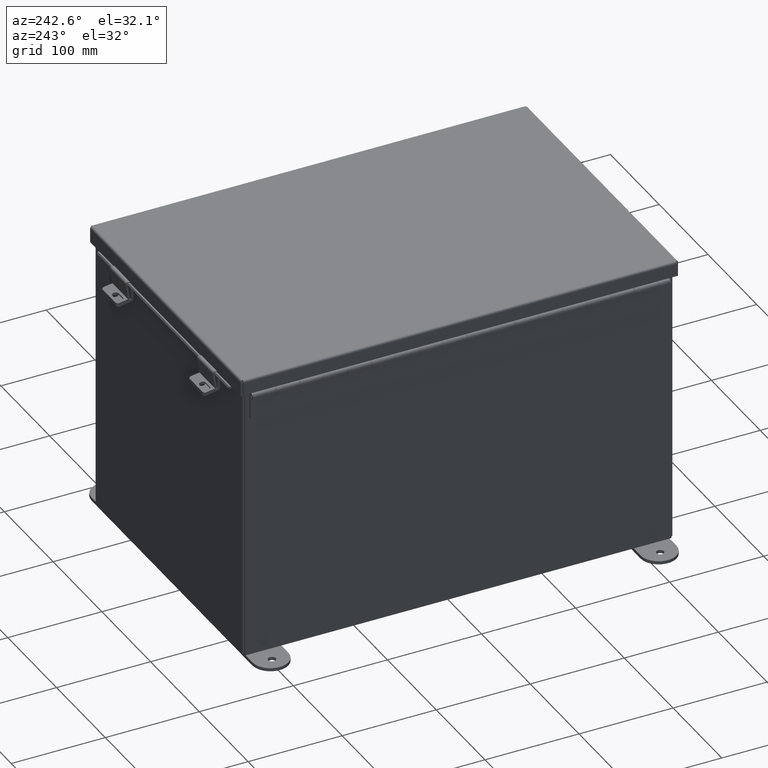
[diagram: clean part render]
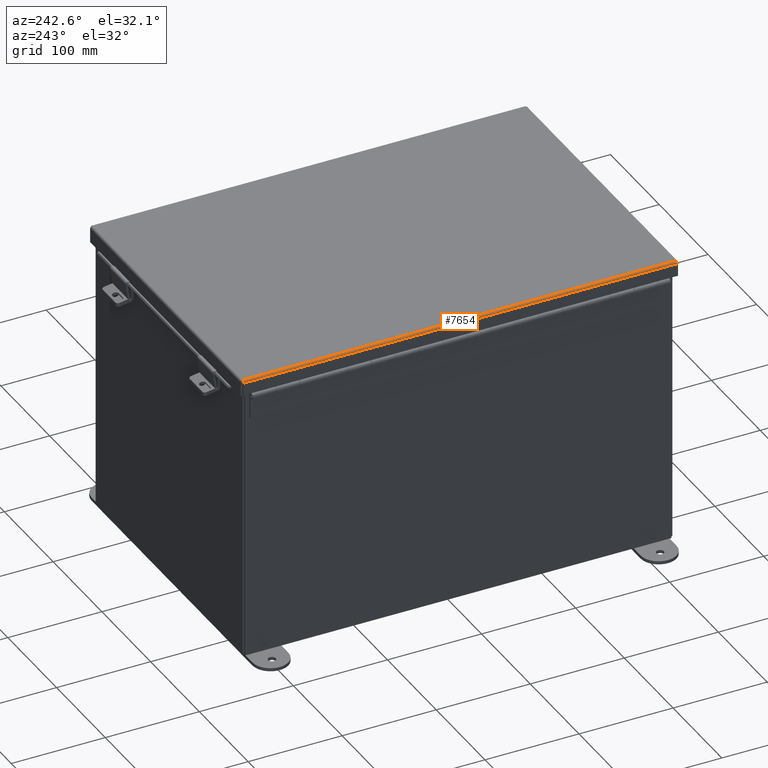
[diagram: same view with one face highlighted and labeled with its STEP entity id]
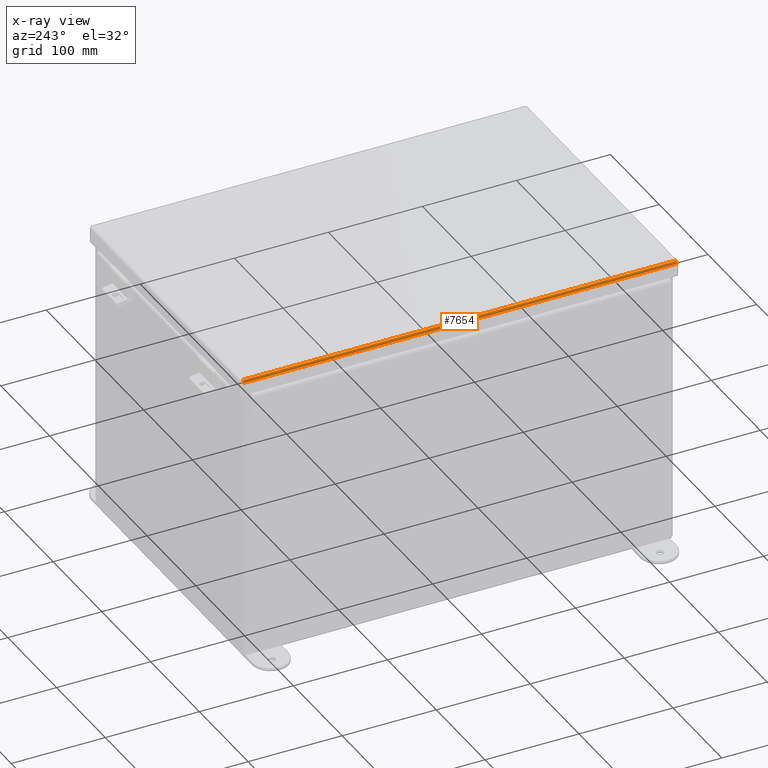
[diagram: x-ray of the same camera — body ghosted, the highlighted face saturated]
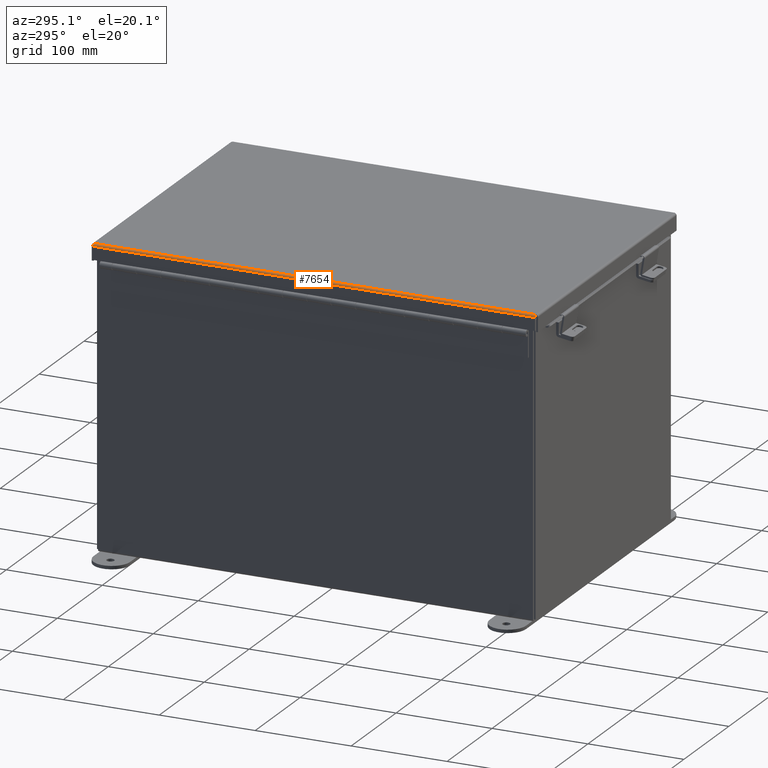
[diagram: same view with one face highlighted and labeled with its STEP entity id]
A machine part, auxiliary view. The second image highlights one B-rep face of the part: STEP entity #7654.
The next image is the same camera in x-ray: the body ghosted, the highlighted face saturated — about 0% of this face is hidden behind the body in this view.
A second angle (auxiliary view) of the same face is appended — the face is thin or edge-on in the first view.
In plain terms, the highlighted cylindrical surface (edge-blend (fillet) strip) has radius 2.2276 mm, axis along (0, 1, 0).
Its self-contained STEP definition (entity closure, byte-faithful):
#450 = CARTESIAN_POINT ( 'NONE',  ( 6.156250000000000000, -9.074478932188156900, 0.01300000000000010700 ) ) ;
#1283 = B_SPLINE_CURVE_WITH_KNOTS ( 'NONE', 3,
 ( #17846, #8669, #6507, #18585, #16425, #13266, #11812, #7691, #8114, #6486 ),
 .UNSPECIFIED., .F., .F.,
 ( 4, 2, 2, 2, 4 ),
 ( 0.0000000000000000000, 0.2500000000000000000, 0.5000000000000000000, 0.7500000000000000000, 1.000000000000000000 ),
 .UNSPECIFIED. ) ;
#1349 = EDGE_CURVE ( 'NONE', #8849, #5608, #7788, .T. ) ;
#1716 = CARTESIAN_POINT ( 'NONE',  ( 6.068550000000011700, -9.068550000000021400, -0.07470000000000015500 ) ) ;
#1801 = ORIENTED_EDGE ( 'NONE', *, *, #13396, .F. ) ;
#2033 = ORIENTED_EDGE ( 'NONE', *, *, #1349, .F. ) ;
#2591 = VECTOR ( 'NONE', #9209, 39.37007874015748100 ) ;
#3101 = CARTESIAN_POINT ( 'NONE',  ( 6.156250000000000000, -9.156250000000021300, 0.01300000000000010700 ) ) ;
#3126 = CARTESIAN_POINT ( 'NONE',  ( 6.156250000000000000, -9.074478932188156900, 0.01300000000000010700 ) ) ;
#5434 = DIRECTION ( 'NONE',  ( -4.576273056739369400E-029, 1.000000000000000000, 3.328006943901143600E-030 ) ) ;
#5555 = CARTESIAN_POINT ( 'NONE',  ( 6.145181066258667900, -9.072502621458779600, -0.03116738457853012600 ) ) ;
#5560 = FACE_OUTER_BOUND ( 'NONE', #17374, .T. ) ;
#5608 = VERTEX_POINT ( 'NONE', #450 ) ;
#6486 = CARTESIAN_POINT ( 'NONE',  ( 6.068550000000011700, 9.068549999999977000, -0.07469999999999797600 ) ) ;
#6507 = CARTESIAN_POINT ( 'NONE',  ( 6.153967403743811500, 9.073490776823424800, -0.009955289458306117900 ) ) ;
#7069 = EDGE_CURVE ( 'NONE', #12781, #5608, #14725, .T. ) ;
#7654 = ADVANCED_FACE ( 'NONE', ( #5560 ), #8943, .T. ) ;
#7691 = CARTESIAN_POINT ( 'NONE',  ( 6.091505289458309500, 9.069538155364668300, -0.07241740374381115700 ) ) ;
#7788 = B_SPLINE_CURVE_WITH_KNOTS ( 'NONE', 3,
 ( #8013, #18265, #13856, #12756, #9000, #12295, #5555, #10495, #8198, #3126 ),
 .UNSPECIFIED., .F., .F.,
 ( 4, 2, 2, 2, 4 ),
 ( 0.0000000000000000000, 0.2500000000000000000, 0.5000000000000000000, 0.7500000000000000000, 1.000000000000000000 ),
 .UNSPECIFIED. ) ;
#8013 = CARTESIAN_POINT ( 'NONE',  ( 6.068550000000011700, -9.068550000000021400, -0.07470000000000015500 ) ) ;
#8114 = CARTESIAN_POINT ( 'NONE',  ( 6.080029903154993100, 9.069044077682322700, -0.07469999999999998900 ) ) ;
#8198 = CARTESIAN_POINT ( 'NONE',  ( 6.156250000000000000, -9.073984854505813000, 0.001520096845003723500 ) ) ;
#8669 = CARTESIAN_POINT ( 'NONE',  ( 6.156249999999999100, 9.073984854505766900, 0.001520096845010427200 ) ) ;
#8849 = VERTEX_POINT ( 'NONE', #1716 ) ;
#8943 = CYLINDRICAL_SURFACE ( 'NONE', #15124, 0.08770000000000026400 ) ;
#9000 = CARTESIAN_POINT ( 'NONE',  ( 6.122445747341799900, -9.071020388411742600, -0.05713078207832136100 ) ) ;
#9209 = DIRECTION ( 'NONE',  ( 4.550355251618405500E-029, -1.000000000000000000, -5.967176504932513700E-017 ) ) ;
#9729 = LINE ( 'NONE', #11471, #17139 ) ;
#10270 = VERTEX_POINT ( 'NONE', #12696 ) ;
#10494 = DIRECTION ( 'NONE',  ( 1.000000000000000000, 0.0000000000000000000, -3.966747639032868000E-015 ) ) ;
#10495 = CARTESIAN_POINT ( 'NONE',  ( 6.153967403743810600, -9.073490776823467400, -0.009955289458312021100 ) ) ;
#11471 = CARTESIAN_POINT ( 'NONE',  ( 6.068550000000011700, 9.074478932188112500, -0.07469999999999797600 ) ) ;
#11812 = CARTESIAN_POINT ( 'NONE',  ( 6.112717384578529000, 9.070526310729356100, -0.06363106625866787900 ) ) ;
#12295 = CARTESIAN_POINT ( 'NONE',  ( 6.138680782078318500, -9.072008543776434000, -0.04089574734180182600 ) ) ;
#12545 = DIRECTION ( 'NONE',  ( 4.576273056739368800E-029, -1.000000000000000000, -3.328006943901143600E-030 ) ) ;
#12696 = CARTESIAN_POINT ( 'NONE',  ( 6.068550000000011700, 9.068549999999977000, -0.07469999999999797600 ) ) ;
#12756 = CARTESIAN_POINT ( 'NONE',  ( 6.112717384578525400, -9.070526310729398700, -0.06363106625866901700 ) ) ;
#12781 = VERTEX_POINT ( 'NONE', #17913 ) ;
#13266 = CARTESIAN_POINT ( 'NONE',  ( 6.122445747341800800, 9.071020388411700000, -0.05713078207831954300 ) ) ;
#13396 = EDGE_CURVE ( 'NONE', #10270, #8849, #9729, .T. ) ;
#13450 = EDGE_CURVE ( 'NONE', #12781, #10270, #1283, .T. ) ;
#13856 = CARTESIAN_POINT ( 'NONE',  ( 6.091505289458309500, -9.069538155364712800, -0.07241740374381140700 ) ) ;
#14725 = LINE ( 'NONE', #3101, #2591 ) ;
#15124 = AXIS2_PLACEMENT_3D ( 'NONE', #16944, #5434, #10494 ) ;
#16266 = ORIENTED_EDGE ( 'NONE', *, *, #7069, .T. ) ;
#16425 = CARTESIAN_POINT ( 'NONE',  ( 6.138680782078321100, 9.072008543776391300, -0.04089574734179846100 ) ) ;
#16944 = CARTESIAN_POINT ( 'NONE',  ( 6.068550000000000100, 9.074478932188112500, 0.01300000000000010700 ) ) ;
#17139 = VECTOR ( 'NONE', #12545, 39.37007874015748100 ) ;
#17374 = EDGE_LOOP ( 'NONE', ( #1801, #18261, #16266, #2033 ) ) ;
#17846 = CARTESIAN_POINT ( 'NONE',  ( 6.156250000000000000, 9.074478932188112500, 0.01300000000000229300 ) ) ;
#17913 = CARTESIAN_POINT ( 'NONE',  ( 6.156250000000000000, 9.074478932188112500, 0.01300000000000229300 ) ) ;
#18261 = ORIENTED_EDGE ( 'NONE', *, *, #13450, .F. ) ;
#18265 = CARTESIAN_POINT ( 'NONE',  ( 6.080029903154992300, -9.069044077682363500, -0.07469999999999998900 ) ) ;
#18585 = CARTESIAN_POINT ( 'NONE',  ( 6.145181066258668800, 9.072502621458731700, -0.03116738457852589300 ) ) ;